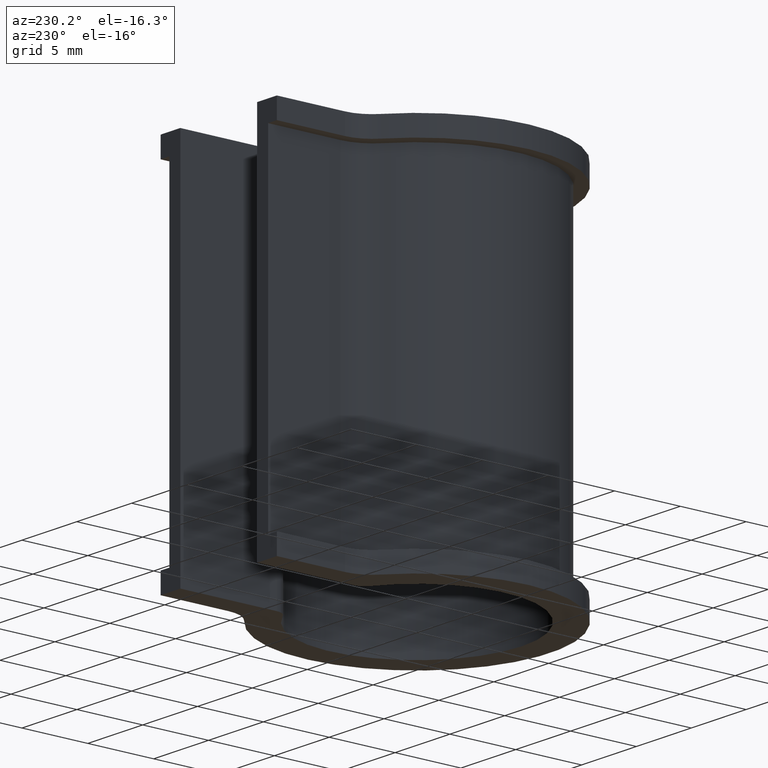
[diagram: clean part render]
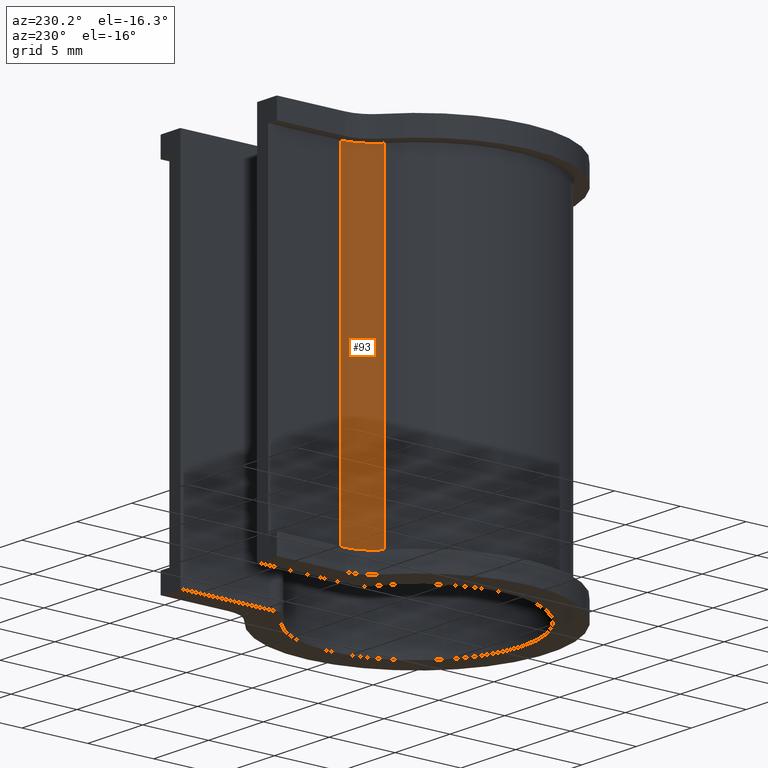
[diagram: same view with one face highlighted and labeled with its STEP entity id]
A machine part, auxiliary view. The second image highlights one B-rep face of the part: STEP entity #93.
In plain terms, the highlighted cylindrical surface (partial cylindrical patch) has radius 3 mm, axis along (0, 0, -1).
Its self-contained STEP definition (entity closure, byte-faithful):
#93 = ADVANCED_FACE( '', ( #138 ), #139, .F. );
#138 = FACE_OUTER_BOUND( '', #190, .T. );
#139 = CYLINDRICAL_SURFACE( '', #191, 3.00000000000000 );
#190 = EDGE_LOOP( '', ( #364, #365, #366, #367 ) );
#191 = AXIS2_PLACEMENT_3D( '', #368, #369, #370 );
#364 = ORIENTED_EDGE( '', *, *, #433, .F. );
#365 = ORIENTED_EDGE( '', *, *, #495, .F. );
#366 = ORIENTED_EDGE( '', *, *, #455, .F. );
#367 = ORIENTED_EDGE( '', *, *, #453, .F. );
#368 = CARTESIAN_POINT( '', ( -7.49999999999999, 9.54618248306621, -25.0000000000000 ) );
#369 = DIRECTION( '', ( 0.000000000000000, 0.000000000000000, -1.00000000000000 ) );
#370 = DIRECTION( '', ( 1.00000000000000, 0.000000000000000, 0.000000000000000 ) );
#433 = EDGE_CURVE( '', #508, #511, #512, .T. );
#453 = EDGE_CURVE( '', #511, #548, #549, .F. );
#455 = EDGE_CURVE( '', #548, #551, #552, .F. );
#495 = EDGE_CURVE( '', #551, #508, #615, .F. );
#508 = VERTEX_POINT( '', #632 );
#511 = VERTEX_POINT( '', #635 );
#512 = CIRCLE( '', #636, 3.00000000000000 );
#548 = VERTEX_POINT( '', #687 );
#549 = LINE( '', #688, #689 );
#551 = VERTEX_POINT( '', #692 );
#552 = CIRCLE( '', #693, 3.00000000000000 );
#615 = LINE( '', #779, #780 );
#632 = CARTESIAN_POINT( '', ( -5.64662273476111, 7.18715880520800, -25.0000000000000 ) );
#635 = CARTESIAN_POINT( '', ( -4.49999999999999, 9.54618248306621, -25.0000000000000 ) );
#636 = AXIS2_PLACEMENT_3D( '', #795, #796, #797 );
#687 = CARTESIAN_POINT( '', ( -4.49999999999999, 9.54618248306621, 0.000000000000000 ) );
#688 = CARTESIAN_POINT( '', ( -4.49999999999999, 9.54618248306621, 0.000000000000000 ) );
#689 = VECTOR( '', #825, 1000.00000000000 );
#692 = CARTESIAN_POINT( '', ( -5.64662273476111, 7.18715880520800, 0.000000000000000 ) );
#693 = AXIS2_PLACEMENT_3D( '', #827, #828, #829 );
#779 = CARTESIAN_POINT( '', ( -5.64662273476111, 7.18715880520800, -25.0000000000000 ) );
#780 = VECTOR( '', #901, 1000.00000000000 );
#795 = CARTESIAN_POINT( '', ( -7.49999999999999, 9.54618248306621, -25.0000000000000 ) );
#796 = DIRECTION( '', ( 0.000000000000000, 0.000000000000000, 1.00000000000000 ) );
#797 = DIRECTION( '', ( 1.00000000000000, 0.000000000000000, 0.000000000000000 ) );
#825 = DIRECTION( '', ( 0.000000000000000, 0.000000000000000, -1.00000000000000 ) );
#827 = CARTESIAN_POINT( '', ( -7.49999999999999, 9.54618248306621, 0.000000000000000 ) );
#828 = DIRECTION( '', ( 0.000000000000000, 0.000000000000000, 1.00000000000000 ) );
#829 = DIRECTION( '', ( 1.00000000000000, 0.000000000000000, 0.000000000000000 ) );
#901 = DIRECTION( '', ( 0.000000000000000, 0.000000000000000, 1.00000000000000 ) );